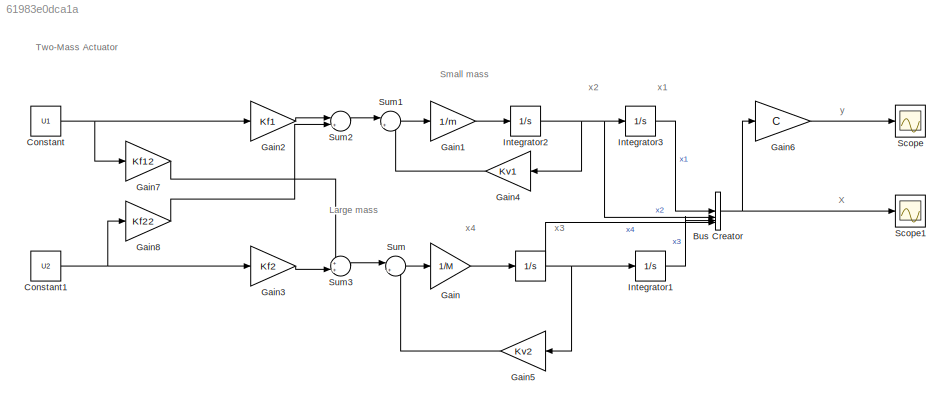
MODEL slx_61983e0dca1a
KIND model
CONFIG AbsTol = auto
CONFIG EnableMultiTasking = off
CONFIG FixedStep = auto
CONFIG MaxStep = auto
CONFIG MinStep = auto
CONFIG RelTol = 1e-3
CONFIG SampleTimeConstraint = Unconstrained
CONFIG SolverName = VariableStepAuto
CONFIG StartTime = 0.0
CONFIG StopTime = 50
BLOCK [Integrator]  
BLOCK [BusCreator] Bus Creator
  DisplayOption = bar
  InheritFromInputs = on
  Inputs = 4
BLOCK [Constant] Constant
  Value = U1
BLOCK [Constant] Constant1
  Value = U2
BLOCK [Gain] Gain
  Gain = 1/M
BLOCK [Gain] Gain1
  Gain = 1/m
BLOCK [Gain] Gain2
  Gain = Kf1
BLOCK [Gain] Gain3
  Gain = Kf2
BLOCK [Gain] Gain4
  Gain = Kv1
BLOCK [Gain] Gain5
  Gain = Kv2
BLOCK [Gain] Gain6
  Gain = C
  Multiplication = Matrix(K*u)
BLOCK [Gain] Gain7
  Gain = Kf12
BLOCK [Gain] Gain8
  Gain = Kf22
BLOCK [Integrator] Integrator1
BLOCK [Integrator] Integrator2
BLOCK [Integrator] Integrator3
BLOCK [Scope] Scope
  Floating = off
  NumInputPorts = 1
  ScopeSpecificationString = Simulink.scopes.TimeScopeBlockCfg('CurrentConfiguration', extmgr.ConfigurationSet(extmgr.Configuration('Core','General UI',true),extmgr.Configuration('Core','Source UI',true),extmgr.Configuration('Sources','WiredSimulink',true),extmgr.Configuration('Visuals','Time Domain',true,'SerializedDisplays',{struct('MinYLimReal','-250.42112','MaxYLimReal','2253.7901','YLabelReal','','MinYLimMag',' 0.00000',...<+1376ch>
BLOCK [Scope] Scope1
  Floating = off
  NumInputPorts = 1
  ScopeSpecificationString = Simulink.scopes.TimeScopeBlockCfg('CurrentConfiguration', extmgr.ConfigurationSet(extmgr.Configuration('Core','General UI',true),extmgr.Configuration('Core','Source UI',true),extmgr.Configuration('Sources','WiredSimulink',true,'DataLoggingVariableName','ScopeData1'),extmgr.Configuration('Visuals','Time Domain',true,'SerializedDisplays',{struct('MinYLimReal','-250.42112','MaxYLimReal','2253.7901','...<+1441ch>
BLOCK [Sum] Sum
  Inputs = |+-
BLOCK [Sum] Sum1
  Inputs = |+-
BLOCK [Sum] Sum2
  Inputs = |++
BLOCK [Sum] Sum3
  Inputs = ++|
ANNOTATION (root): Large mass
ANNOTATION (root): Small mass
ANNOTATION (root): x1
ANNOTATION (root): x2
ANNOTATION (root): x3
ANNOTATION (root): x4
ANNOTATION (root): y
ANNOTATION (root): X
ANNOTATION (root): Two-Mass Actuator
NET  :1 -> Bus Creator:4, Gain5:1, Integrator1:1
NET Bus Creator:1 -> Gain6:1, Scope1:1
NET Constant1:1 -> Gain3:1, Gain8:1
NET Constant:1 -> Gain2:1, Gain7:1
LINE Gain1:1 -> Integrator2:1
LINE Gain2:1 -> Sum2:1
LINE Gain3:1 -> Sum3:2
LINE Gain4:1 -> Sum1:2
LINE Gain5:1 -> Sum:2
LINE Gain6:1 -> Scope:1
LINE Gain7:1 -> Sum3:1
LINE Gain8:1 -> Sum2:2
LINE Gain:1 ->  :1
LINE Integrator1:1 -> Bus Creator:3
NET Integrator2:1 -> Bus Creator:2, Gain4:1, Integrator3:1
LINE Integrator3:1 -> Bus Creator:1
LINE Sum1:1 -> Gain1:1
LINE Sum2:1 -> Sum1:1
LINE Sum3:1 -> Sum:1
LINE Sum:1 -> Gain:1
note: NET lines group one-source signal fan-out (src -> all destinations, sorted); 1:1 wires keep LINE
